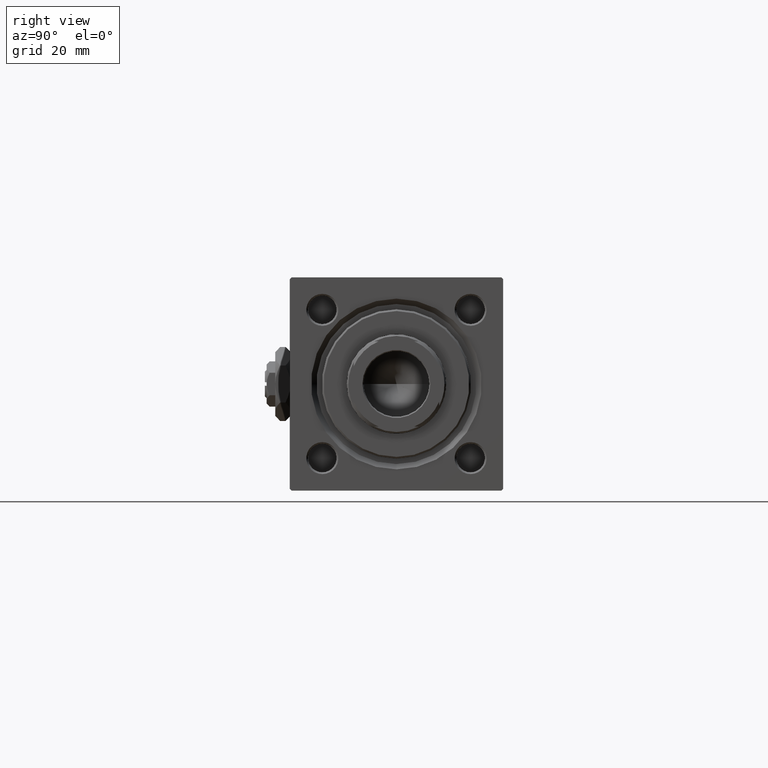
[diagram: clean part render]
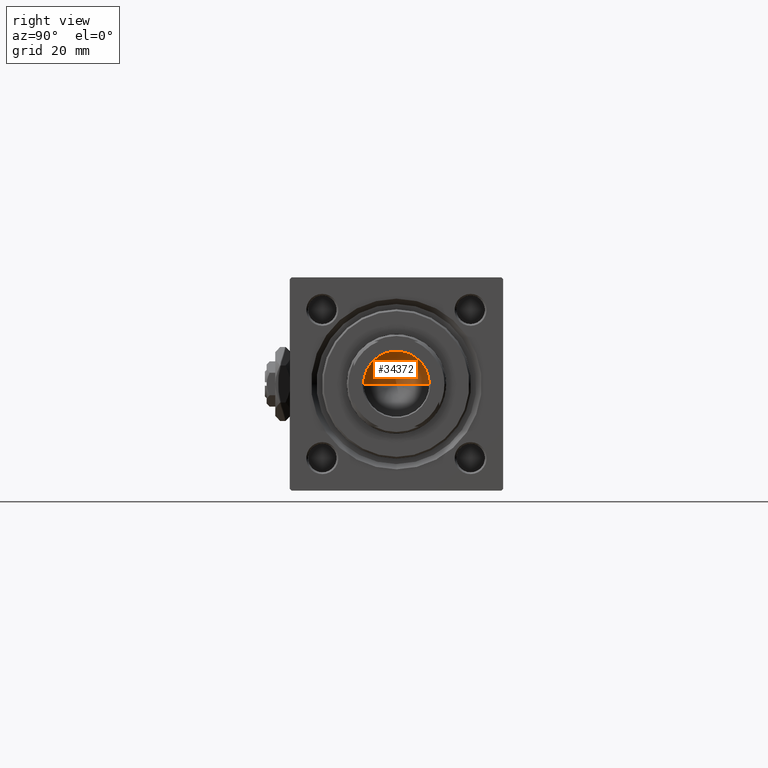
[diagram: same view with one face highlighted and labeled with its STEP entity id]
A machine part, right view. The second image highlights one B-rep face of the part: STEP entity #34372.
In plain terms, the highlighted conical surface has half-angle 59 deg.
Its self-contained STEP definition (entity closure, byte-faithful):
#2183 = DIRECTION ( 'NONE',  ( -0.8571673007021117785, 1.049727191138617956E-16, 0.5150380749100550437 ) ) ;
#3940 = VECTOR ( 'NONE', #21550, 1000.000000000000000 ) ;
#5105 = AXIS2_PLACEMENT_3D ( 'NONE', #28001, #7808, #51916 ) ;
#6544 = EDGE_CURVE ( 'NONE', #35720, #22892, #41502, .T. ) ;
#7808 = DIRECTION ( 'NONE',  ( -0.000000000000000000, -0.000000000000000000, 1.000000000000000000 ) ) ;
#8265 = ORIENTED_EDGE ( 'NONE', *, *, #44557, .T. ) ;
#11720 = CARTESIAN_POINT ( 'NONE',  ( -9.249999999999992895, 1.132798289211300712E-15, 101.0000000000000000 ) ) ;
#13011 = ORIENTED_EDGE ( 'NONE', *, *, #6544, .F. ) ;
#13745 = LINE ( 'NONE', #25806, #24447 ) ;
#15549 = DIRECTION ( 'NONE',  ( -0.000000000000000000, -0.000000000000000000, 1.000000000000000000 ) ) ;
#17791 = CARTESIAN_POINT ( 'NONE',  ( -9.769621978240258809E-15, 0.000000000000000000, 95.44203927399506426 ) ) ;
#17815 = CARTESIAN_POINT ( 'NONE',  ( 9.249999999999992895, 0.000000000000000000, 101.0000000000000000 ) ) ;
#19741 = CARTESIAN_POINT ( 'NONE',  ( 0.000000000000000000, 0.000000000000000000, 101.0000000000000000 ) ) ;
#20765 = VERTEX_POINT ( 'NONE', #11720 ) ;
#21550 = DIRECTION ( 'NONE',  ( 0.8571673007021117785, 0.000000000000000000, 0.5150380749100550437 ) ) ;
#22478 = EDGE_CURVE ( 'NONE', #35720, #20765, #13745, .T. ) ;
#22892 = VERTEX_POINT ( 'NONE', #17815 ) ;
#24447 = VECTOR ( 'NONE', #2183, 1000.000000000000000 ) ;
#25806 = CARTESIAN_POINT ( 'NONE',  ( -9.249999999999992895, 1.132798289211300712E-15, 101.0000000000000000 ) ) ;
#28001 = CARTESIAN_POINT ( 'NONE',  ( 0.000000000000000000, 0.000000000000000000, 101.0000000000000000 ) ) ;
#28824 = CIRCLE ( 'NONE', #48095, 9.249999999999992895 ) ;
#34372 = ADVANCED_FACE ( 'NONE', ( #44565 ), #43646, .F. ) ;
#35720 = VERTEX_POINT ( 'NONE', #17791 ) ;
#41502 = LINE ( 'NONE', #50864, #3940 ) ;
#42372 = ORIENTED_EDGE ( 'NONE', *, *, #22478, .T. ) ;
#43646 = CONICAL_SURFACE ( 'NONE', #5105, 9.249999999999992895, 1.029744258676653423 ) ;
#43896 = DIRECTION ( 'NONE',  ( 1.000000000000000000, 0.000000000000000000, 0.000000000000000000 ) ) ;
#44557 = EDGE_CURVE ( 'NONE', #20765, #22892, #28824, .T. ) ;
#44565 = FACE_OUTER_BOUND ( 'NONE', #51465, .T. ) ;
#48095 = AXIS2_PLACEMENT_3D ( 'NONE', #19741, #15549, #43896 ) ;
#50864 = CARTESIAN_POINT ( 'NONE',  ( 9.249999999999992895, 0.000000000000000000, 101.0000000000000000 ) ) ;
#51465 = EDGE_LOOP ( 'NONE', ( #13011, #42372, #8265 ) ) ;
#51916 = DIRECTION ( 'NONE',  ( 1.000000000000000000, 0.000000000000000000, 0.000000000000000000 ) ) ;